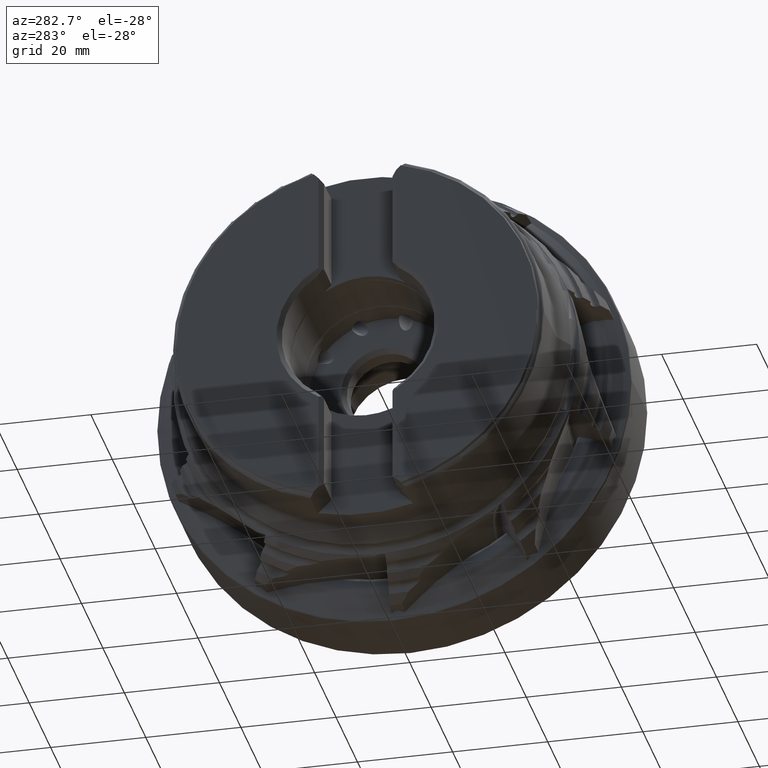
[diagram: clean part render]
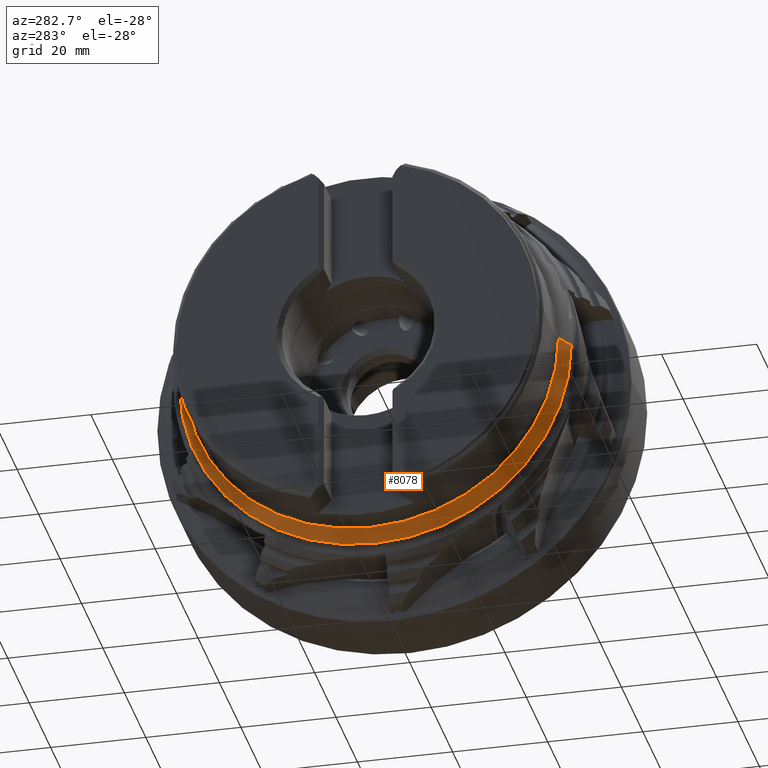
[diagram: same view with one face highlighted and labeled with its STEP entity id]
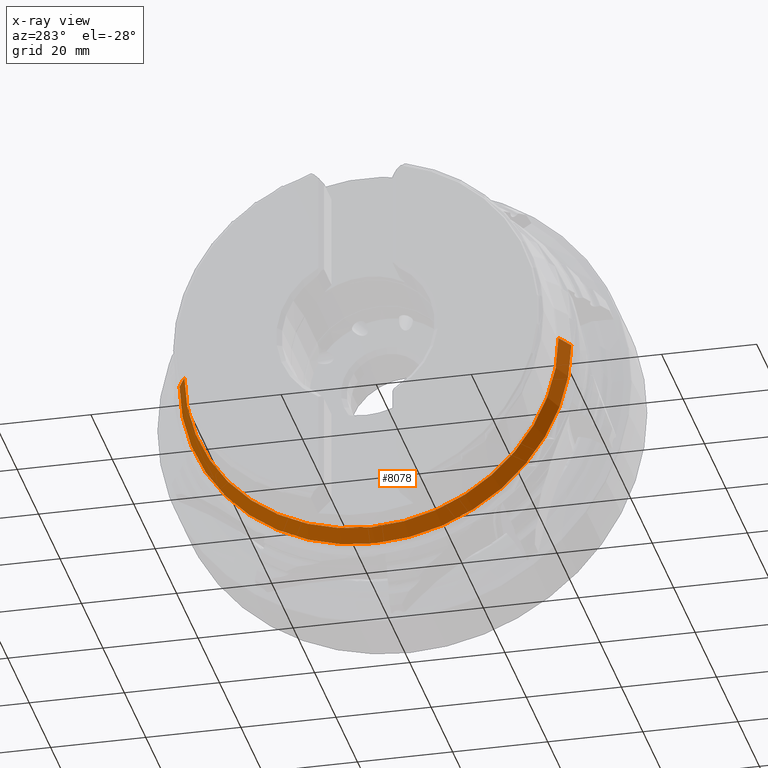
[diagram: x-ray of the same camera — body ghosted, the highlighted face saturated]
A machine part, auxiliary view. The second image highlights one B-rep face of the part: STEP entity #8078.
The next image is the same camera in x-ray: the body ghosted, the highlighted face saturated — about 1% of this face is hidden behind the body in this view.
In plain terms, the highlighted conical surface has half-angle 27.04 deg.
Its self-contained STEP definition (entity closure, byte-faithful):
#1728 = DIRECTION ( 'NONE',  ( 1.000000000000000000, 1.224646799147353207E-16, -0.0000000000000000000 ) ) ;
#2039 = AXIS2_PLACEMENT_3D ( 'NONE', #15105, #11749, #16658 ) ;
#2585 = LINE ( 'NONE', #5710, #19507 ) ;
#3405 = DIRECTION ( 'NONE',  ( -1.684859293567715650E-16, 1.000000000000000000, 0.0000000000000000000 ) ) ;
#4179 = CONICAL_SURFACE ( 'NONE', #16746, 41.18381831882241784, 0.4719305420050681210 ) ;
#4711 = FACE_OUTER_BOUND ( 'NONE', #4995, .T. ) ;
#4995 = EDGE_LOOP ( 'NONE', ( #9771, #6632, #17880, #5386 ) ) ;
#5331 = AXIS2_PLACEMENT_3D ( 'NONE', #8460, #1728, #3405 ) ;
#5386 = ORIENTED_EDGE ( 'NONE', *, *, #12298, .F. ) ;
#5710 = CARTESIAN_POINT ( 'NONE',  ( -32.04999999999999005, -41.18381831882242494, 5.043563128081200455E-15 ) ) ;
#6095 = EDGE_CURVE ( 'NONE', #12817, #16690, #11012, .T. ) ;
#6632 = ORIENTED_EDGE ( 'NONE', *, *, #15128, .T. ) ;
#7608 = DIRECTION ( 'NONE',  ( 0.8906923113073641485, 0.4546066503890430210, 0.0000000000000000000 ) ) ;
#8078 = ADVANCED_FACE ( 'NONE', ( #4711 ), #4179, .T. ) ;
#8100 = DIRECTION ( 'NONE',  ( 1.000000000000000000, 1.224646799147353207E-16, -0.0000000000000000000 ) ) ;
#8460 = CARTESIAN_POINT ( 'NONE',  ( -32.04999999999999716, -3.924992991267266547E-15, 0.0000000000000000000 ) ) ;
#9771 = ORIENTED_EDGE ( 'NONE', *, *, #18607, .F. ) ;
#10210 = VERTEX_POINT ( 'NONE', #21136 ) ;
#11012 = LINE ( 'NONE', #11132, #13290 ) ;
#11132 = CARTESIAN_POINT ( 'NONE',  ( -32.05000000000000426, 41.18381831882241073, 0.0000000000000000000 ) ) ;
#11749 = DIRECTION ( 'NONE',  ( 1.000000000000000000, 1.224646799147353207E-16, -0.0000000000000000000 ) ) ;
#12011 = CARTESIAN_POINT ( 'NONE',  ( -35.68618004883287398, 39.32792306607789357, 0.0000000000000000000 ) ) ;
#12298 = EDGE_CURVE ( 'NONE', #12990, #16690, #15039, .T. ) ;
#12817 = VERTEX_POINT ( 'NONE', #12011 ) ;
#12990 = VERTEX_POINT ( 'NONE', #21469 ) ;
#13290 = VECTOR ( 'NONE', #7608, 1000.000000000000114 ) ;
#13860 = CIRCLE ( 'NONE', #2039, 39.32792306607790067 ) ;
#14964 = DIRECTION ( 'NONE',  ( -1.684859293567715650E-16, 1.000000000000000000, 0.0000000000000000000 ) ) ;
#15039 = CIRCLE ( 'NONE', #5331, 41.18381831882241784 ) ;
#15105 = CARTESIAN_POINT ( 'NONE',  ( -35.68618004883286687, -4.370296617059931040E-15, 0.0000000000000000000 ) ) ;
#15128 = EDGE_CURVE ( 'NONE', #10210, #12817, #13860, .T. ) ;
#16658 = DIRECTION ( 'NONE',  ( -1.764368256174792892E-16, 1.000000000000000000, 0.0000000000000000000 ) ) ;
#16690 = VERTEX_POINT ( 'NONE', #20790 ) ;
#16746 = AXIS2_PLACEMENT_3D ( 'NONE', #16880, #8100, #14964 ) ;
#16880 = CARTESIAN_POINT ( 'NONE',  ( -32.04999999999999716, -3.924992991267266547E-15, 0.0000000000000000000 ) ) ;
#17880 = ORIENTED_EDGE ( 'NONE', *, *, #6095, .T. ) ;
#18607 = EDGE_CURVE ( 'NONE', #10210, #12990, #2585, .T. ) ;
#19463 = DIRECTION ( 'NONE',  ( 0.8906923113073642595, -0.4546066503890427435, 5.567325792700411497E-17 ) ) ;
#19507 = VECTOR ( 'NONE', #19463, 1000.000000000000000 ) ;
#20790 = CARTESIAN_POINT ( 'NONE',  ( -32.05000000000000426, 41.18381831882241784, 0.0000000000000000000 ) ) ;
#21136 = CARTESIAN_POINT ( 'NONE',  ( -35.68618004883285977, -39.32792306607790778, 4.929922319039883529E-15 ) ) ;
#21469 = CARTESIAN_POINT ( 'NONE',  ( -32.04999999999999005, -41.18381831882243205, 5.043563128081201244E-15 ) ) ;